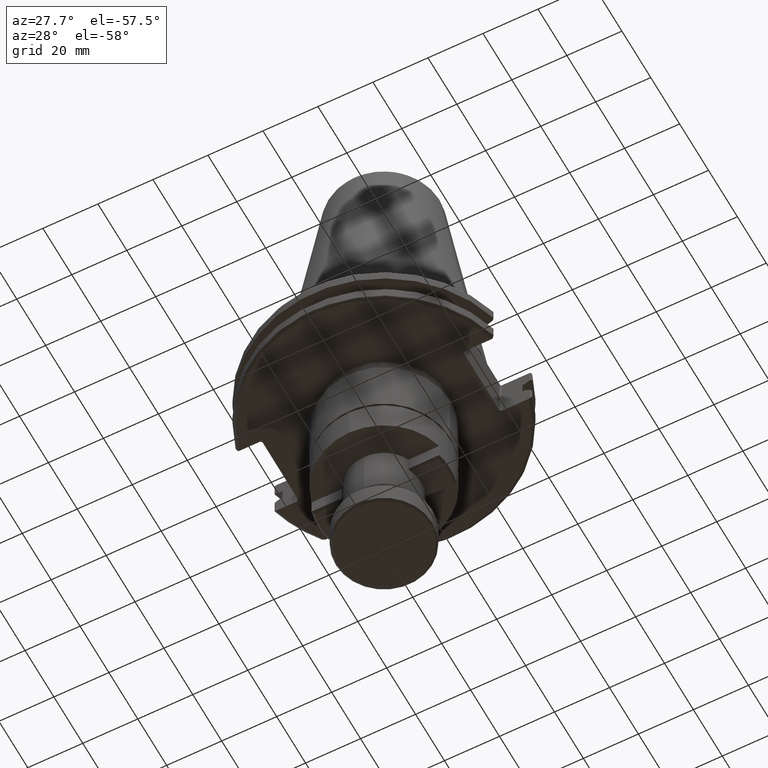
[diagram: clean part render]
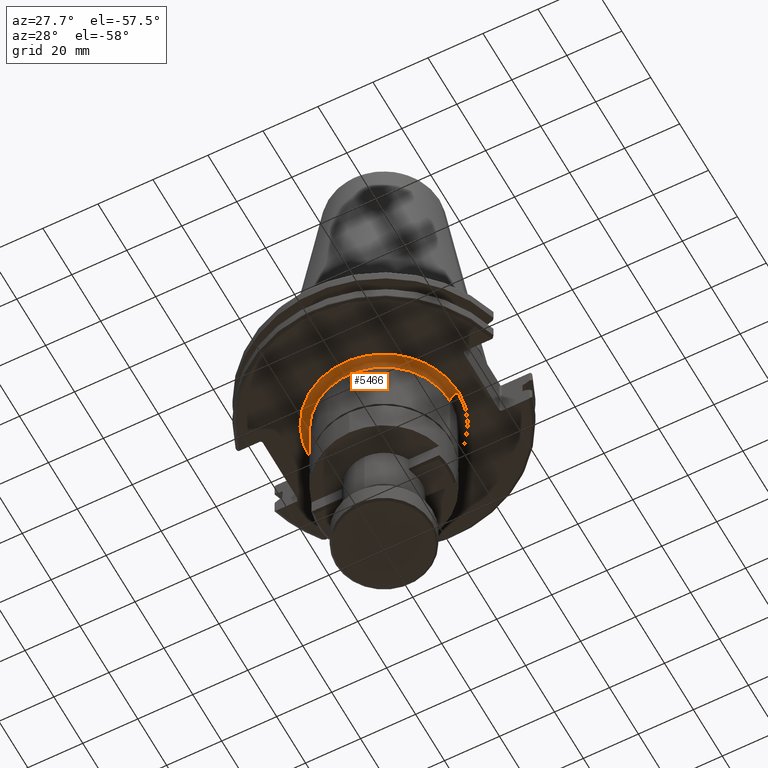
[diagram: same view with one face highlighted and labeled with its STEP entity id]
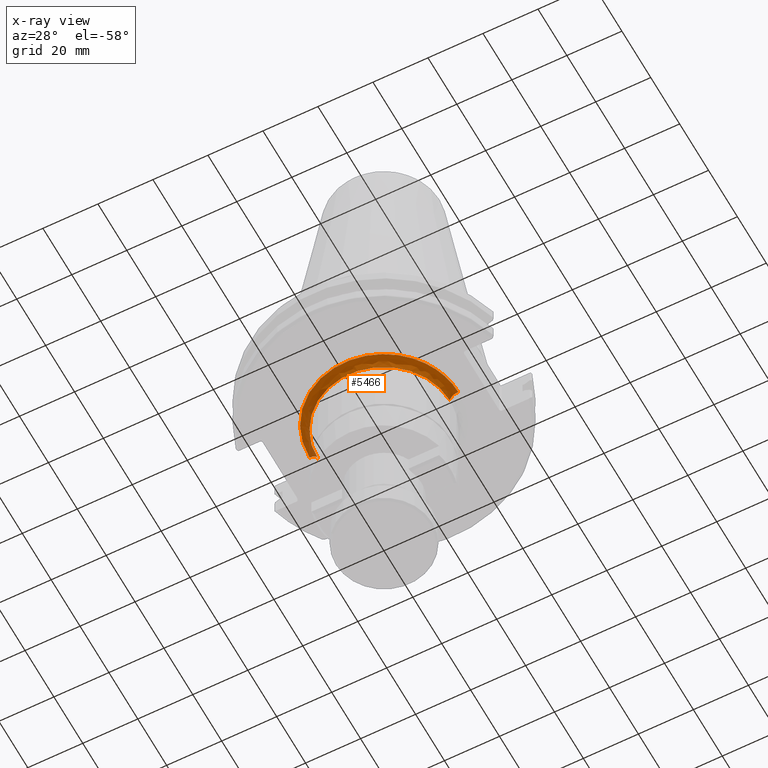
[diagram: x-ray of the same camera — body ghosted, the highlighted face saturated]
A machine part, auxiliary view. The second image highlights one B-rep face of the part: STEP entity #5466.
The next image is the same camera in x-ray: the body ghosted, the highlighted face saturated — about 1% of this face is hidden behind the body in this view.
In plain terms, the highlighted face is a freeform B-spline surface patch.
Its self-contained STEP definition (entity closure, byte-faithful):
#30 = VERTEX_POINT ( 'NONE', #5024 ) ;
#53 = CARTESIAN_POINT ( 'NONE',  ( 27.00000001431957800, 0.0000000000000000000, -19.09999999992663400 ) ) ;
#84 = CARTESIAN_POINT ( 'NONE',  ( -19.50167441603273500, -18.67936076512858500, -19.10000000000001200 ) ) ;
#103 = CARTESIAN_POINT ( 'NONE',  ( -19.84999780691019900, -18.30241700038675400, -19.10000000000000900 ) ) ;
#150 =( BOUNDED_CURVE ( )  B_SPLINE_CURVE ( 3, ( #4927, #3179, #5564, #761 ),
 .UNSPECIFIED., .F., .T. ) 
 B_SPLINE_CURVE_WITH_KNOTS ( ( 4, 4 ),
 ( 0.06314145671542523200, 0.9368585430000012600 ),
 .UNSPECIFIED. ) 
 CURVE ( )  GEOMETRIC_REPRESENTATION_ITEM ( )  RATIONAL_B_SPLINE_CURVE ( ( 0.9565783023485026100, 0.7697947703959741000, 0.7697947703351378800, 0.9565783021659939300 ) ) 
 REPRESENTATION_ITEM ( '' )  );
#231 =( BOUNDED_CURVE ( )  B_SPLINE_CURVE ( 3, ( #1538, #1385, #660, #719 ),
 .UNSPECIFIED., .F., .T. ) 
 B_SPLINE_CURVE_WITH_KNOTS ( ( 4, 4 ),
 ( 0.06314145699999974800, 0.9368585429999997100 ),
 .UNSPECIFIED. ) 
 CURVE ( )  GEOMETRIC_REPRESENTATION_ITEM ( )  RATIONAL_B_SPLINE_CURVE ( ( 0.9565783021659933800, 0.7697947703959744400, 0.7697947703959742100, 0.9565783021659929300 ) ) 
 REPRESENTATION_ITEM ( '' )  );
#322 = CARTESIAN_POINT ( 'NONE',  ( 25.72566664648176300, -8.200965153939764100, -19.10000000000000100 ) ) ;
#367 = CARTESIAN_POINT ( 'NONE',  ( 26.75981747647369200, -3.593361498511896000, -19.10000000000000500 ) ) ;
#387 = CARTESIAN_POINT ( 'NONE',  ( -18.99628863891091900, -19.19767316538471700, -19.09999999999999800 ) ) ;
#394 = CARTESIAN_POINT ( 'NONE',  ( 25.91702885238396800, -7.570186068183322600, -19.10000000000000900 ) ) ;
#395 = CARTESIAN_POINT ( 'NONE',  ( -18.38281046055189100, -19.77814483559315700, -19.10000000000000100 ) ) ;
#427 = CARTESIAN_POINT ( 'NONE',  ( -19.86864130540779200, -18.28217372692032700, -19.10000000000000900 ) ) ;
#538 = CARTESIAN_POINT ( 'NONE',  ( 25.90655496766824600, -7.605952960988609800, -19.10000000000000100 ) ) ;
#660 = CARTESIAN_POINT ( 'NONE',  ( -24.00000000091064900, 0.0000000000000000000, -20.34264068676927900 ) ) ;
#663 = CARTESIAN_POINT ( 'NONE',  ( -19.96609943575098000, -18.17582499351097900, -19.10000000000000100 ) ) ;
#688 = CARTESIAN_POINT ( 'NONE',  ( -19.90766737399889800, -18.23966939277528400, -19.10000000000000500 ) ) ;
#719 = CARTESIAN_POINT ( 'NONE',  ( -23.99999999996942900, -7.383723426551921600E-009, -22.09999999965454600 ) ) ;
#735 = CARTESIAN_POINT ( 'NONE',  ( -3.915018260296352400, -26.71611441341320200, -19.10000000000000900 ) ) ;
#761 = CARTESIAN_POINT ( 'NONE',  ( 27.00000001431958200, 0.0000000000000000000, -19.09999999992663400 ) ) ;
#842 = CARTESIAN_POINT ( 'NONE',  ( 26.74098892414473400, -3.731303878574411900, -19.10000000000000500 ) ) ;
#860 = CARTESIAN_POINT ( 'NONE',  ( 25.91328856593676700, -7.582980795628897000, -19.10000000000000500 ) ) ;
#978 = CARTESIAN_POINT ( 'NONE',  ( -3.640837500615655000, -26.75486954292323500, -19.10000000000000100 ) ) ;
#1020 = CARTESIAN_POINT ( 'NONE',  ( -2.245988518057251900, -26.92993816402518800, -19.10000000000000900 ) ) ;
#1021 = CARTESIAN_POINT ( 'NONE',  ( 24.60524586572257600, -11.14311798136822400, -19.10000000000000900 ) ) ;
#1130 = CARTESIAN_POINT ( 'NONE',  ( -1.124634048996882500, -26.99997708943663000, -19.10000000000000500 ) ) ;
#1165 = ORIENTED_EDGE ( 'NONE', *, *, #3167, .F. ) ;
#1179 = CARTESIAN_POINT ( 'NONE',  ( 0.5623170244984414500, -27.00001145325764900, -19.10000000000000900 ) ) ;
#1215 = CARTESIAN_POINT ( 'NONE',  ( 1.404288255885268500, -26.97375545277452600, -19.09999999999999800 ) ) ;
#1242 = CARTESIAN_POINT ( 'NONE',  ( 2.383955491455107500, -26.89714538302202800, -19.09999999999999400 ) ) ;
#1253 = CARTESIAN_POINT ( 'NONE',  ( 2.803248763617592200, -26.85446005258763700, -19.10000000000000100 ) ) ;
#1259 = CARTESIAN_POINT ( 'NONE',  ( 3.082652252945838000, -26.82381373376523500, -19.10000000000000100 ) ) ;
#1342 = B_SPLINE_CURVE_WITH_KNOTS ( 'NONE', 3,
 ( #2737, #2836, #2877, #3944, #4644, #4770, #4747, #4900, #4939, #4955, #4979, #5000, #5020, #5036, #5057, #5089, #5465, #5066, #5488, #5618, #5257, #5282, #5310, #5358, #2366, #2355, #4632, #5641, #5517, #5540, #5627, #5651, #5671, #4882, #2596, #2580, #2563, #2464, #2471, #2664, #2647, #5383, #5431, #2429, #4875, #4669, #4662, #4376, #4612, #3595, #663, #688, #427, #103, #84, #387, #395, #3420, #3356, #4194, #2774, #2818, #2757, #2703, #3961, #2687, #4466, #4808, #4830, #4590, #5102, #5081, #5409, #2724, #2960, #2875, #4624, #4570, #4448, #4529, #4152, #4110, #4092, #4337, #4309, #4390, #4356, #4209, #4182, #4427, #4494, #4548, #735, #978, #1020, #1130, #1179, #1215, #1242, #1253, #1259, #1427, #1444, #1514, #1551, #1564, #1619, #1637, #1644, #1794, #1861, #1884, #1904, #1922, #1935, #1969, #1986, #2007, #2027, #2044, #2049, #2060, #2073, #2078, #2090, #2180, #2295, #2334, #2200, #2217, #2281, #2630, #2414, #4036, #3164, #3099, #3110, #3141, #3183, #3224, #3245, #3268, #3314, #3321, #3340, #3476, #3531, #3549, #3566, #3582, #3612, #3630, #3643, #3690, #3707, #3730, #3751, #3772, #3777, #3790, #3894, #3912, #3926, #3995, #4052, #4605, #3981, #2384, #2439, #4831, #1021, #3455, #1372, #322, #3503, #2188, #1773, #538, #860, #394, #5582, #1607, #1993, #1625, #3717, #842, #5631, #4164, #4140, #367, #3312, #4620, #53 ),
 .UNSPECIFIED., .F., .F.,
 ( 4, 1, 1, 1, 1, 1, 1, 2, 2, 1, 1, 1, 1, 1, 1, 2, 2, 1, 1, 1, 1, 1, 2, 2, 1, 1, 1, 1, 2, 2, 1, 1, 1, 1, 2, 2, 1, 1, 1, 1, 2, 2, 1, 1, 1, 1, 2, 2, 1, 1, 1, 2, 2, 1, 1, 1, 2, 2, 1, 1, 1, 2, 2, 1, 1, 2, 2, 1, 2, 2, 2, 1, 1, 2, 2, 1, 1, 2, 2, 1, 1, 1, 2, 2, 1, 1, 1, 2, 2, 1, 1, 1, 1, 2, 2, 1, 1, 1, 1, 2, 2, 1, 1, 1, 1, 2, 2, 1, 1, 1, 1, 2, 2, 1, 1, 1, 1, 2, 2, 1, 1, 1, 1, 2, 2, 1, 1, 1, 1, 1, 1, 2, 2, 1, 1, 1, 1, 1, 1, 2, 2, 4 ),
 ( 0.0000000000000000000, 0.03125000000000305300, 0.04687500000000456600, 0.05468750000000532200, 0.05859375000000572500, 0.06054687500000591200, 0.06152343750000600900, 0.06201171875000603700, 0.06250000000000606500, 0.09375000000000860400, 0.1093750000000098400, 0.1171875000000104800, 0.1210937500000108000, 0.1230468750000109800, 0.1240234375000110900, 0.1245117187500111600, 0.1250000000000112100, 0.1562500000000142700, 0.1718750000000157400, 0.1796875000000164600, 0.1835937500000167900, 0.1855468750000169900, 0.1865234375000171000, 0.1875000000000171800, 0.2031250000000186000, 0.2109375000000192900, 0.2148437500000196800, 0.2167968750000199000, 0.2177734375000200100, 0.2187500000000201000, 0.2343750000000214000, 0.2421875000000220900, 0.2460937500000224300, 0.2480468750000226500, 0.2490234375000228200, 0.2500000000000229300, 0.2656250000000243100, 0.2734375000000250400, 0.2773437500000253700, 0.2792968750000255900, 0.2802734375000256500, 0.2812500000000257600, 0.2968750000000258700, 0.3046875000000259200, 0.3085937500000259200, 0.3105468750000259800, 0.3115234375000259800, 0.3125000000000260300, 0.3281250000000265300, 0.3359375000000267600, 0.3398437500000268700, 0.3417968750000269200, 0.3437500000000269200, 0.3593750000000272600, 0.3671875000000274800, 0.3710937500000275900, 0.3730468750000276400, 0.3750000000000276400, 0.3906250000000279200, 0.3984375000000280900, 0.4023437500000281400, 0.4042968750000282600, 0.4062500000000283100, 0.4218750000000288700, 0.4296875000000291400, 0.4335937500000292500, 0.4375000000000293700, 0.4531250000000297000, 0.4609375000000299200, 0.4687500000000301400, 0.5000000000000308600, 0.5156250000000313100, 0.5234375000000315300, 0.5273437500000315300, 0.5312500000000315300, 0.5468750000000319700, 0.5546875000000322000, 0.5585937500000324200, 0.5625000000000325300, 0.5781250000000329700, 0.5859375000000330800, 0.5898437500000330800, 0.5917968750000332000, 0.5937500000000332000, 0.6093750000000336400, 0.6171875000000337500, 0.6210937500000338600, 0.6230468750000338600, 0.6250000000000339700, 0.6406250000000344200, 0.6484375000000346400, 0.6523437500000347500, 0.6542968750000348600, 0.6552734375000348600, 0.6562500000000347500, 0.6718750000000347500, 0.6796875000000346400, 0.6835937500000347500, 0.6855468750000346400, 0.6865234375000346400, 0.6875000000000346400, 0.7031250000000330800, 0.7109375000000322000, 0.7148437500000316400, 0.7167968750000314200, 0.7177734375000313100, 0.7187500000000310900, 0.7343750000000298600, 0.7421875000000292000, 0.7460937500000288700, 0.7480468750000285300, 0.7490234375000284200, 0.7500000000000283100, 0.7656250000000260900, 0.7734375000000249800, 0.7773437500000243100, 0.7792968750000240900, 0.7802734375000238700, 0.7812500000000235400, 0.7968750000000205400, 0.8046875000000189800, 0.8085937500000182100, 0.8105468750000176500, 0.8115234375000174300, 0.8125000000000172100, 0.8437500000000118800, 0.8593750000000092100, 0.8671875000000079900, 0.8710937500000074400, 0.8730468750000069900, 0.8740234375000067700, 0.8745117187500067700, 0.8750000000000066600, 0.9062500000000044400, 0.9218750000000034400, 0.9296875000000028900, 0.9335937500000026600, 0.9355468750000024400, 0.9365234375000023300, 0.9370117187500023300, 0.9375000000000022200, 1.000000000000000000 ),
 .UNSPECIFIED. ) ;
#1372 = CARTESIAN_POINT ( 'NONE',  ( 25.51809306428453200, -8.836774935104758200, -19.10000000000000100 ) ) ;
#1385 = CARTESIAN_POINT ( 'NONE',  ( -25.24264068676928100, 0.0000000000000000000, -19.10000000091065100 ) ) ;
#1391 = VERTEX_POINT ( 'NONE', #3525 ) ;
#1427 = CARTESIAN_POINT ( 'NONE',  ( 3.223463379952974200, -26.80724880032117600, -19.09999999999999800 ) ) ;
#1444 = CARTESIAN_POINT ( 'NONE',  ( 3.915485000707942000, -26.72042113443342600, -19.10000000000000900 ) ) ;
#1514 = CARTESIAN_POINT ( 'NONE',  ( 4.741233740873622300, -26.59074297249817000, -19.09999999999999800 ) ) ;
#1538 = CARTESIAN_POINT ( 'NONE',  ( -27.00000001431958600, 0.0000000000000000000, -19.09999999992663400 ) ) ;
#1551 = CARTESIAN_POINT ( 'NONE',  ( 5.696422162771404500, -26.39485309855133700, -19.10000000000000100 ) ) ;
#1564 = CARTESIAN_POINT ( 'NONE',  ( 6.104034677521426900, -26.30134343435505800, -19.09999999999999800 ) ) ;
#1607 = CARTESIAN_POINT ( 'NONE',  ( 26.35790112285480900, -5.922169170356236000, -19.10000000000000100 ) ) ;
#1619 = CARTESIAN_POINT ( 'NONE',  ( 6.375386586959749900, -26.23687991131836800, -19.10000000000000900 ) ) ;
#1625 = CARTESIAN_POINT ( 'NONE',  ( 26.67667023603048900, -4.172121578323515000, -19.10000000000000500 ) ) ;
#1637 = CARTESIAN_POINT ( 'NONE',  ( 6.513019746259797000, -26.20303976023536300, -19.10000000000000500 ) ) ;
#1644 = CARTESIAN_POINT ( 'NONE',  ( 7.178690243988511600, -26.03399479867323400, -19.10000000000000900 ) ) ;
#1773 = CARTESIAN_POINT ( 'NONE',  ( 25.89643240470180500, -7.640402578381158000, -19.10000000000000500 ) ) ;
#1794 = CARTESIAN_POINT ( 'NONE',  ( 7.969964821269930300, -25.80716869256951200, -19.09999999999999400 ) ) ;
#1803 = EDGE_CURVE ( 'NONE', #3031, #1391, #150, .T. ) ;
#1861 = CARTESIAN_POINT ( 'NONE',  ( 8.879940959777124800, -25.50058696904744700, -19.10000000000000100 ) ) ;
#1884 = CARTESIAN_POINT ( 'NONE',  ( 9.331634645283763500, -25.33680829068615000, -19.10000000000000100 ) ) ;
#1904 = CARTESIAN_POINT ( 'NONE',  ( 9.524511713983690300, -25.26437003925983000, -19.10000000000000500 ) ) ;
#1907 = EDGE_CURVE ( 'NONE', #30, #4093, #231, .T. ) ;
#1922 = CARTESIAN_POINT ( 'NONE',  ( 9.652939551033785600, -25.21557845180417000, -19.10000000000000900 ) ) ;
#1935 = CARTESIAN_POINT ( 'NONE',  ( 9.718549880575897900, -25.19035976100701300, -19.10000000000000500 ) ) ;
#1969 = CARTESIAN_POINT ( 'NONE',  ( 10.28178963002465600, -24.97146152326607500, -19.10000000000000900 ) ) ;
#1975 = AXIS2_PLACEMENT_3D ( 'NONE', #3514, #3530, #3553 ) ;
#1986 = CARTESIAN_POINT ( 'NONE',  ( 11.02287658098833500, -24.65771582426994300, -19.09999999999999400 ) ) ;
#1993 = CARTESIAN_POINT ( 'NONE',  ( 26.58134619576635400, -4.757821568016872500, -19.10000000000000100 ) ) ;
#2007 = CARTESIAN_POINT ( 'NONE',  ( 11.87015410591868800, -24.25338675692680800, -19.09999999999999800 ) ) ;
#2027 = CARTESIAN_POINT ( 'NONE',  ( 12.28946188891871900, -24.04164911862664400, -19.09999999999999800 ) ) ;
#2044 = CARTESIAN_POINT ( 'NONE',  ( 12.46823715746189800, -23.94885303693473200, -19.10000000000000500 ) ) ;
#2049 = CARTESIAN_POINT ( 'NONE',  ( 12.58721443270663400, -23.88653312034829300, -19.10000000000000500 ) ) ;
#2060 = CARTESIAN_POINT ( 'NONE',  ( 12.64835573239741100, -23.85420885789477600, -19.10000000000000500 ) ) ;
#2073 = CARTESIAN_POINT ( 'NONE',  ( 13.16609531129834900, -23.57809383200862300, -19.10000000000000500 ) ) ;
#2078 = CARTESIAN_POINT ( 'NONE',  ( 13.84472792148390000, -23.19054216379490500, -19.09999999999999400 ) ) ;
#2090 = CARTESIAN_POINT ( 'NONE',  ( 14.61601401708957400, -22.70445152523930000, -19.09999999999999800 ) ) ;
#2180 = CARTESIAN_POINT ( 'NONE',  ( 14.99654407748970000, -22.45291944955158300, -19.09999999999999800 ) ) ;
#2188 = CARTESIAN_POINT ( 'NONE',  ( 25.87265793216764800, -7.720724604434636300, -19.10000000000000100 ) ) ;
#2200 = CARTESIAN_POINT ( 'NONE',  ( 15.32000403474432600, -22.23282456729258200, -19.09999999999999800 ) ) ;
#2217 = CARTESIAN_POINT ( 'NONE',  ( 15.34780479456201300, -22.21364098890562400, -19.10000000000000100 ) ) ;
#2281 = CARTESIAN_POINT ( 'NONE',  ( 15.78743644057085200, -21.90914629388371200, -19.10000000000000500 ) ) ;
#2295 = CARTESIAN_POINT ( 'NONE',  ( 15.18553086083908700, -22.32503172260526400, -19.09999999999999400 ) ) ;
#2334 = CARTESIAN_POINT ( 'NONE',  ( 15.26625128652082500, -22.26976804910630700, -19.10000000000000900 ) ) ;
#2355 = CARTESIAN_POINT ( 'NONE',  ( -24.41487573560658200, -11.52953640104372800, -19.10000000000000100 ) ) ;
#2366 = CARTESIAN_POINT ( 'NONE',  ( -24.55677178621875000, -11.22634060830551800, -19.09999999999999800 ) ) ;
#2384 = CARTESIAN_POINT ( 'NONE',  ( 24.22388500565596900, -11.92493184772801300, -19.10000000000000900 ) ) ;
#2414 = CARTESIAN_POINT ( 'NONE',  ( 17.08183029626526000, -20.91226196979910400, -19.10000000000000100 ) ) ;
#2429 = CARTESIAN_POINT ( 'NONE',  ( -21.66570427815505400, -16.11204316935008400, -19.10000000000000100 ) ) ;
#2439 = CARTESIAN_POINT ( 'NONE',  ( 24.24682315443070000, -11.87822369832018400, -19.10000000000000900 ) ) ;
#2464 = CARTESIAN_POINT ( 'NONE',  ( -23.08842657600481400, -13.99733122057486400, -19.10000000000000500 ) ) ;
#2471 = CARTESIAN_POINT ( 'NONE',  ( -22.84630235980485600, -14.39581618589313200, -19.09999999999999800 ) ) ;
#2491 = CARTESIAN_POINT ( 'NONE',  ( -24.01498750400000400, 0.0000000000000000000, -22.39950024999999900 ) ) ;
#2549 = CARTESIAN_POINT ( 'NONE',  ( 23.99999999996942900, -1.077523541144796300E-009, -22.10000000000000900 ) ) ;
#2563 = CARTESIAN_POINT ( 'NONE',  ( -23.10117615396595900, -13.97627592409089400, -19.10000000000000500 ) ) ;
#2580 = CARTESIAN_POINT ( 'NONE',  ( -23.12806898204388900, -13.93172723772369700, -19.10000000000000100 ) ) ;
#2596 = CARTESIAN_POINT ( 'NONE',  ( -23.16830887332462300, -13.86485111036721600, -19.09999999999999800 ) ) ;
#2630 = CARTESIAN_POINT ( 'NONE',  ( 16.39523455840580000, -21.46255088912238300, -19.09999999999999800 ) ) ;
#2647 = CARTESIAN_POINT ( 'NONE',  ( -22.05335345003347700, -15.57993159281507700, -19.10000000000000100 ) ) ;
#2664 = CARTESIAN_POINT ( 'NONE',  ( -22.49111815134663300, -14.94950325164092100, -19.09999999999999800 ) ) ;
#2687 = CARTESIAN_POINT ( 'NONE',  ( -15.73404724991259600, -21.94236976191145400, -19.10000000000000100 ) ) ;
#2703 = CARTESIAN_POINT ( 'NONE',  ( -16.79233503453267000, -21.15330553464737300, -19.10000000000000100 ) ) ;
#2706 = EDGE_CURVE ( 'NONE', #4093, #3031, #4721, .T. ) ;
#2710 = CARTESIAN_POINT ( 'NONE',  ( -24.01498750400000800, -48.02997500800001500, -22.39950024999999900 ) ) ;
#2724 = CARTESIAN_POINT ( 'NONE',  ( -12.93551390278294200, -23.69971950361174600, -19.10000000000000500 ) ) ;
#2737 = CARTESIAN_POINT ( 'NONE',  ( -27.00000001431958600, 0.0000000000000000000, -19.09999999992663400 ) ) ;
#2757 = CARTESIAN_POINT ( 'NONE',  ( -17.37421338520477900, -20.67342678626984700, -19.10000000000000500 ) ) ;
#2774 = CARTESIAN_POINT ( 'NONE',  ( -17.79891340684976700, -20.30269787732503400, -19.09999999999999800 ) ) ;
#2818 = CARTESIAN_POINT ( 'NONE',  ( -17.77712536106629000, -20.32178068779164800, -19.10000000000000100 ) ) ;
#2836 = CARTESIAN_POINT ( 'NONE',  ( -26.99999999858500700, -0.5999146560185331100, -19.10000000000000100 ) ) ;
#2841 = CARTESIAN_POINT ( 'NONE',  ( 24.01498750400000800, -48.02997500800001500, -22.39950024999999900 ) ) ;
#2875 = CARTESIAN_POINT ( 'NONE',  ( -12.76512497406285500, -23.79193188673262000, -19.10000000000000100 ) ) ;
#2877 = CARTESIAN_POINT ( 'NONE',  ( -26.97013274194941000, -1.497859497567566100, -19.10000000000000500 ) ) ;
#2916 = CARTESIAN_POINT ( 'NONE',  ( 24.01498750400000400, 0.0000000000000000000, -22.39950024999999900 ) ) ;
#2960 = CARTESIAN_POINT ( 'NONE',  ( -12.82088413489934800, -23.76192547614115800, -19.10000000000000500 ) ) ;
#2990 = CARTESIAN_POINT ( 'NONE',  ( -23.81033873200000200, 0.0000000000000000000, -20.35983870400000500 ) ) ;
#3012 = CARTESIAN_POINT ( 'NONE',  ( -23.81033873199999800, -47.62067746399998900, -20.35983870400000500 ) ) ;
#3031 = VERTEX_POINT ( 'NONE', #2549 ) ;
#3099 = CARTESIAN_POINT ( 'NONE',  ( 17.65838670600427900, -20.42504087508851600, -19.10000000000000500 ) ) ;
#3110 = CARTESIAN_POINT ( 'NONE',  ( 17.70595590913058000, -20.38381862836232400, -19.10000000000000500 ) ) ;
#3141 = CARTESIAN_POINT ( 'NONE',  ( 17.73067791412891100, -20.36231667423901100, -19.10000000000000500 ) ) ;
#3164 = CARTESIAN_POINT ( 'NONE',  ( 17.58693244566178000, -20.48674361594963900, -19.10000000000000100 ) ) ;
#3167 = EDGE_CURVE ( 'NONE', #30, #1391, #1342, .T. ) ;
#3179 = CARTESIAN_POINT ( 'NONE',  ( 24.00000000010117100, 0.0000000000000000000, -20.34264068757874400 ) ) ;
#3183 = CARTESIAN_POINT ( 'NONE',  ( 18.11737253620285100, -20.02485100311215800, -19.10000000000000900 ) ) ;
#3190 = CARTESIAN_POINT ( 'NONE',  ( 23.81033873199999800, -47.62067746399998900, -20.35983870400000500 ) ) ;
#3224 = CARTESIAN_POINT ( 'NONE',  ( 18.64984388828689200, -19.53440549246658600, -19.10000000000000500 ) ) ;
#3230 = CARTESIAN_POINT ( 'NONE',  ( 23.81033873200000200, 0.0000000000000000000, -20.35983870400000500 ) ) ;
#3245 = CARTESIAN_POINT ( 'NONE',  ( 19.24752214791793400, -18.93767813665197500, -19.10000000000000100 ) ) ;
#3268 = CARTESIAN_POINT ( 'NONE',  ( 19.54047669828337400, -18.63317922706264400, -19.10000000000000100 ) ) ;
#3312 = CARTESIAN_POINT ( 'NONE',  ( 26.92035398089006300, -2.394860910733607600, -19.10000000000000900 ) ) ;
#3314 = CARTESIAN_POINT ( 'NONE',  ( 19.68548282860357900, -18.47939596434746100, -19.09999999999999800 ) ) ;
#3321 = CARTESIAN_POINT ( 'NONE',  ( 19.74731306769883700, -18.41316017862942900, -19.10000000000000100 ) ) ;
#3339 = CARTESIAN_POINT ( 'NONE',  ( -25.25983870400000300, 0.0000000000000000000, -18.91033873200000300 ) ) ;
#3340 = CARTESIAN_POINT ( 'NONE',  ( 19.78846317257843200, -18.36892994967833200, -19.10000000000001200 ) ) ;
#3356 = CARTESIAN_POINT ( 'NONE',  ( -17.91226244748983000, -20.20289965633495700, -19.09999999999999400 ) ) ;
#3400 = CARTESIAN_POINT ( 'NONE',  ( -25.25983870400000300, -50.51967740899999600, -18.91033873200000300 ) ) ;
#3418 = CARTESIAN_POINT ( 'NONE',  ( 25.25983870400000300, -50.51967740899999600, -18.91033873200000300 ) ) ;
#3420 = CARTESIAN_POINT ( 'NONE',  ( -18.07010601177651000, -20.06232413817479500, -19.10000000000000500 ) ) ;
#3442 = CARTESIAN_POINT ( 'NONE',  ( 25.25983870400000300, 0.0000000000000000000, -18.91033873200000300 ) ) ;
#3455 = CARTESIAN_POINT ( 'NONE',  ( 25.06322520977783700, -10.09292837797690400, -19.10000000000000100 ) ) ;
#3463 = CARTESIAN_POINT ( 'NONE',  ( -27.29950024999999800, 0.0000000000000000000, -19.11498750400000500 ) ) ;
#3476 = CARTESIAN_POINT ( 'NONE',  ( 19.80993748405983000, -18.34576733867190900, -19.10000000000001200 ) ) ;
#3503 = CARTESIAN_POINT ( 'NONE',  ( 25.82448835131635400, -7.881126998425058300, -19.09999999999999800 ) ) ;
#3514 = CARTESIAN_POINT ( 'NONE',  ( 0.0000000000000000000, 0.0000000000000000000, -22.10000000000000900 ) ) ;
#3525 = CARTESIAN_POINT ( 'NONE',  ( 27.00000001431957800, 0.0000000000000000000, -19.09999999992663400 ) ) ;
#3530 = DIRECTION ( 'NONE',  ( 0.0000000000000000000, 0.0000000000000000000, 1.000000000000000000 ) ) ;
#3531 = CARTESIAN_POINT ( 'NONE',  ( 20.14263958163858300, -17.98575535256615900, -19.10000000000000500 ) ) ;
#3549 = CARTESIAN_POINT ( 'NONE',  ( 20.59879959650417200, -17.46605547424827900, -19.10000000000000100 ) ) ;
#3553 = DIRECTION ( 'NONE',  ( 1.000000000000000000, 0.0000000000000000000, 2.891205793294678300E-016 ) ) ;
#3566 = CARTESIAN_POINT ( 'NONE',  ( 21.10729641839307600, -16.83970553992552200, -19.10000000000000100 ) ) ;
#3582 = CARTESIAN_POINT ( 'NONE',  ( 21.35562236380729200, -16.52152222035950800, -19.10000000000000100 ) ) ;
#3595 = CARTESIAN_POINT ( 'NONE',  ( -20.10169162523055100, -18.02623944223379500, -19.10000000000000100 ) ) ;
#3612 = CARTESIAN_POINT ( 'NONE',  ( 21.47830472013183100, -16.36117847247532700, -19.09999999999999800 ) ) ;
#3630 = CARTESIAN_POINT ( 'NONE',  ( 21.53056559790323400, -16.29219141878900600, -19.10000000000000100 ) ) ;
#3643 = CARTESIAN_POINT ( 'NONE',  ( 21.56533567754213000, -16.24614042642187800, -19.10000000000000500 ) ) ;
#3648 = CARTESIAN_POINT ( 'NONE',  ( -27.29950024999999400, -54.59900050000000200, -19.11498750400000500 ) ) ;
#3670 = CARTESIAN_POINT ( 'NONE',  ( 27.29950024999999400, -54.59900050000000200, -19.11498750400000500 ) ) ;
#3690 = CARTESIAN_POINT ( 'NONE',  ( 21.58354273535638200, -16.22194213679059200, -19.10000000000000500 ) ) ;
#3707 = CARTESIAN_POINT ( 'NONE',  ( 21.86331621505395600, -15.84892579758708400, -19.10000000000000100 ) ) ;
#3717 = CARTESIAN_POINT ( 'NONE',  ( 26.72023263211462300, -3.878390036345929400, -19.09999999999999400 ) ) ;
#3730 = CARTESIAN_POINT ( 'NONE',  ( 22.24507637421641300, -15.31321658556735300, -19.10000000000000100 ) ) ;
#3735 = CARTESIAN_POINT ( 'NONE',  ( 27.29950024999999800, 0.0000000000000000000, -19.11498750400000500 ) ) ;
#3751 = CARTESIAN_POINT ( 'NONE',  ( 22.66733843761876700, -14.67230116305182200, -19.10000000000000100 ) ) ;
#3770 =( BOUNDED_SURFACE ( )  B_SPLINE_SURFACE ( 3, 3, ( 
 ( #3735, #3670, #3648, #3463 ),
 ( #3442, #3418, #3400, #3339 ),
 ( #3230, #3190, #3012, #2990 ),
 ( #2916, #2841, #2710, #2491 ) ),
 .UNSPECIFIED., .F., .F., .F. ) 
 B_SPLINE_SURFACE_WITH_KNOTS ( ( 4, 4 ),
 ( 4, 4 ),
 ( 0.0000000000000000000, 1.000000000000000000 ),
 ( 0.0000000000000000000, 1.000000000000000000 ),
 .UNSPECIFIED. ) 
 GEOMETRIC_REPRESENTATION_ITEM ( )  RATIONAL_B_SPLINE_SURFACE ( (
 ( 1.000000000000000000, 0.3333333333333330400, 0.3333333333333330400, 1.000000000000000000),
 ( 0.7553208711179720800, 0.2517736237059909900, 0.2517736237059909900, 0.7553208711179720800),
 ( 0.7553208711179720800, 0.2517736237059909900, 0.2517736237059909900, 0.7553208711179720800),
 ( 1.000000000000000000, 0.3333333333333330400, 0.3333333333333330400, 1.000000000000000000) ) ) 
 REPRESENTATION_ITEM ( '' )  SURFACE ( )  );
#3772 = CARTESIAN_POINT ( 'NONE',  ( 22.87268827208147900, -14.34786311633759900, -19.10000000000000100 ) ) ;
#3777 = CARTESIAN_POINT ( 'NONE',  ( 22.97391789000321800, -14.18464900911638300, -19.09999999999999800 ) ) ;
#3790 = CARTESIAN_POINT ( 'NONE',  ( 23.01699230497476700, -14.11448687376496900, -19.10000000000000100 ) ) ;
#3894 = CARTESIAN_POINT ( 'NONE',  ( 23.04563975784581200, -14.06766473191811800, -19.10000000000000500 ) ) ;
#3912 = CARTESIAN_POINT ( 'NONE',  ( 23.06068164933190400, -14.04299149686523600, -19.10000000000000500 ) ) ;
#3926 = CARTESIAN_POINT ( 'NONE',  ( 23.29022118657159300, -13.66525176524719300, -19.10000000000000500 ) ) ;
#3944 = CARTESIAN_POINT ( 'NONE',  ( -26.88301991009555900, -2.542089313370256700, -19.10000000000000500 ) ) ;
#3961 = CARTESIAN_POINT ( 'NONE',  ( -16.09061943249489300, -21.68417917019453600, -19.10000000000000100 ) ) ;
#3981 = CARTESIAN_POINT ( 'NONE',  ( 24.18937939936488500, -11.99493919649339400, -19.09999999999999800 ) ) ;
#3995 = CARTESIAN_POINT ( 'NONE',  ( 23.60168396333943300, -13.12494809980750600, -19.10000000000000100 ) ) ;
#4036 = CARTESIAN_POINT ( 'NONE',  ( 17.41950264862465000, -20.62980227336204200, -19.09999999999999800 ) ) ;
#4052 = CARTESIAN_POINT ( 'NONE',  ( 23.94301938200641500, -12.48230174588035600, -19.10000000000000100 ) ) ;
#4092 = CARTESIAN_POINT ( 'NONE',  ( -9.845146470972787600, -25.14115619544463000, -19.10000000000000500 ) ) ;
#4093 = VERTEX_POINT ( 'NONE', #4266 ) ;
#4110 = CARTESIAN_POINT ( 'NONE',  ( -9.906270416431803800, -25.11713030107966200, -19.10000000000000900 ) ) ;
#4140 = CARTESIAN_POINT ( 'NONE',  ( 26.75823707543800400, -3.605113276534147400, -19.10000000000000900 ) ) ;
#4152 = CARTESIAN_POINT ( 'NONE',  ( -10.03109194371891100, -25.06754250498837800, -19.10000000000000100 ) ) ;
#4164 = CARTESIAN_POINT ( 'NONE',  ( 26.75539390348273700, -3.626151821308976500, -19.10000000000000100 ) ) ;
#4182 = CARTESIAN_POINT ( 'NONE',  ( -6.781350663831070800, -26.13489218155834200, -19.10000000000000500 ) ) ;
#4194 = CARTESIAN_POINT ( 'NONE',  ( -17.84429563281719700, -20.26282184987559600, -19.10000000000000100 ) ) ;
#4209 = CARTESIAN_POINT ( 'NONE',  ( -6.912268220669612400, -26.10056266454983000, -19.10000000000001200 ) ) ;
#4266 = CARTESIAN_POINT ( 'NONE',  ( -23.99999999996942900, -7.383723426551921600E-009, -22.09999999965454600 ) ) ;
#4309 = CARTESIAN_POINT ( 'NONE',  ( -8.493058252123185900, -25.63977841181195700, -19.10000000000000100 ) ) ;
#4337 = CARTESIAN_POINT ( 'NONE',  ( -9.269016906849545400, -25.36509004776515400, -19.10000000000000500 ) ) ;
#4356 = CARTESIAN_POINT ( 'NONE',  ( -7.177409357713421500, -26.02890829796248400, -19.10000000000000500 ) ) ;
#4376 = CARTESIAN_POINT ( 'NONE',  ( -20.89426469973220800, -17.11149811741052700, -19.10000000000000100 ) ) ;
#4390 = CARTESIAN_POINT ( 'NONE',  ( -7.574147825458882500, -25.91844048486722200, -19.10000000000000100 ) ) ;
#4418 = EDGE_LOOP ( 'NONE', ( #4967, #1165, #5327, #4748 ) ) ;
#4427 = CARTESIAN_POINT ( 'NONE',  ( -6.105366573703392400, -26.30658511338126700, -19.10000000000000500 ) ) ;
#4448 = CARTESIAN_POINT ( 'NONE',  ( -10.65192583356993000, -24.81257311120963400, -19.09999999999999800 ) ) ;
#4466 = CARTESIAN_POINT ( 'NONE',  ( -15.58000608989945800, -22.05147010992086400, -19.10000000000000500 ) ) ;
#4494 = CARTESIAN_POINT ( 'NONE',  ( -5.289240351914097400, -26.48718243487758900, -19.09999999999999800 ) ) ;
#4529 = CARTESIAN_POINT ( 'NONE',  ( -10.21800742046398500, -24.99248044827188800, -19.10000000000000100 ) ) ;
#4548 = CARTESIAN_POINT ( 'NONE',  ( -4.465696159670664600, -26.62962846133720200, -19.10000000000000500 ) ) ;
#4570 = CARTESIAN_POINT ( 'NONE',  ( -11.51089186258503400, -24.43370828485683800, -19.10000000000000100 ) ) ;
#4590 = CARTESIAN_POINT ( 'NONE',  ( -14.94490758732276000, -22.49271647409313200, -19.10000000000000900 ) ) ;
#4605 = CARTESIAN_POINT ( 'NONE',  ( 24.10817763611604600, -12.15790554952158000, -19.10000000000000100 ) ) ;
#4612 = CARTESIAN_POINT ( 'NONE',  ( -20.36987885242174200, -17.72460719437083300, -19.10000000000000100 ) ) ;
#4620 = CARTESIAN_POINT ( 'NONE',  ( 26.99999999858500700, -1.200170645306655800, -19.10000000000000900 ) ) ;
#4624 = CARTESIAN_POINT ( 'NONE',  ( -12.23194137797488400, -24.07630960130585900, -19.10000000000000900 ) ) ;
#4632 = CARTESIAN_POINT ( 'NONE',  ( -24.34268392345620700, -11.68065747733186800, -19.09999999999999800 ) ) ;
#4644 = CARTESIAN_POINT ( 'NONE',  ( -26.82639656939055700, -3.063361096437145400, -19.10000000000000900 ) ) ;
#4662 = CARTESIAN_POINT ( 'NONE',  ( -21.32318638530367100, -16.56909962647129900, -19.10000000000000100 ) ) ;
#4669 = CARTESIAN_POINT ( 'NONE',  ( -21.61730084971577200, -16.17693127248532600, -19.10000000000000900 ) ) ;
#4721 = CIRCLE ( 'NONE', #1975, 24.00000000000000000 ) ;
#4747 = CARTESIAN_POINT ( 'NONE',  ( -26.77821228427138700, -3.453946066622230600, -19.10000000000000900 ) ) ;
#4748 = ORIENTED_EDGE ( 'NONE', *, *, #2706, .T. ) ;
#4770 = CARTESIAN_POINT ( 'NONE',  ( -26.79481816784357000, -3.323786206761978800, -19.10000000000000100 ) ) ;
#4808 = CARTESIAN_POINT ( 'NONE',  ( -15.47703986981624500, -22.12385861687679900, -19.10000000000000500 ) ) ;
#4830 = CARTESIAN_POINT ( 'NONE',  ( -15.42726021615868400, -22.15860616902780600, -19.10000000000000100 ) ) ;
#4831 = CARTESIAN_POINT ( 'NONE',  ( 24.25917595302497900, -11.85297138269719100, -19.10000000000000500 ) ) ;
#4875 = CARTESIAN_POINT ( 'NONE',  ( -21.63290433298648800, -16.15605627155192900, -19.10000000000000900 ) ) ;
#4882 = CARTESIAN_POINT ( 'NONE',  ( -23.26150649712655400, -13.70843512856225700, -19.09999999999999800 ) ) ;
#4900 = CARTESIAN_POINT ( 'NONE',  ( -26.76970517178570900, -3.519012822726821400, -19.09999999999999800 ) ) ;
#4927 = CARTESIAN_POINT ( 'NONE',  ( 23.99999999996942900, -1.077523541144796300E-009, -22.10000000000000900 ) ) ;
#4939 = CARTESIAN_POINT ( 'NONE',  ( -26.76601551557043400, -3.546895752380460300, -19.10000000000000100 ) ) ;
#4955 = CARTESIAN_POINT ( 'NONE',  ( -26.76354602234600200, -3.565483744824526000, -19.09999999999999800 ) ) ;
#4967 = ORIENTED_EDGE ( 'NONE', *, *, #1803, .T. ) ;
#4979 = CARTESIAN_POINT ( 'NONE',  ( -26.76247022662041500, -3.573554121552657400, -19.09999999999999800 ) ) ;
#5000 = CARTESIAN_POINT ( 'NONE',  ( -26.67093195380474300, -4.257137978898565900, -19.10000000000000100 ) ) ;
#5020 = CARTESIAN_POINT ( 'NONE',  ( -26.49820171667584000, -5.258929516279343000, -19.10000000000000100 ) ) ;
#5024 = CARTESIAN_POINT ( 'NONE',  ( -27.00000001431958600, 0.0000000000000000000, -19.09999999992663400 ) ) ;
#5036 = CARTESIAN_POINT ( 'NONE',  ( -26.23099641991705500, -6.414020145935625200, -19.10000000000000900 ) ) ;
#5057 = CARTESIAN_POINT ( 'NONE',  ( -26.08097209984391200, -6.988148919775120800, -19.10000000000000500 ) ) ;
#5066 = CARTESIAN_POINT ( 'NONE',  ( -25.94072021807240300, -7.488643176031502000, -19.10000000000000100 ) ) ;
#5081 = CARTESIAN_POINT ( 'NONE',  ( -13.50481858988294300, -23.38246858063443800, -19.09999999999999800 ) ) ;
#5089 = CARTESIAN_POINT ( 'NONE',  ( -26.00185452188393900, -7.274359171447713400, -19.10000000000000100 ) ) ;
#5102 = CARTESIAN_POINT ( 'NONE',  ( -14.28986627718055200, -22.91893166175961100, -19.10000000000000100 ) ) ;
#5257 = CARTESIAN_POINT ( 'NONE',  ( -25.92335010433094700, -7.548513112626849000, -19.10000000000000100 ) ) ;
#5282 = CARTESIAN_POINT ( 'NONE',  ( -25.70559323452361900, -8.295160767323105600, -19.10000000000000500 ) ) ;
#5310 = CARTESIAN_POINT ( 'NONE',  ( -25.33849602661445000, -9.380463927341780900, -19.09999999999999800 ) ) ;
#5327 = ORIENTED_EDGE ( 'NONE', *, *, #1907, .T. ) ;
#5358 = CARTESIAN_POINT ( 'NONE',  ( -24.83061359268917600, -10.61613446218131400, -19.09999999999999800 ) ) ;
#5383 = CARTESIAN_POINT ( 'NONE',  ( -21.82862531818226900, -15.89126078785259600, -19.10000000000000100 ) ) ;
#5384 = FACE_OUTER_BOUND ( 'NONE', #4418, .T. ) ;
#5409 = CARTESIAN_POINT ( 'NONE',  ( -13.10708653986786100, -23.60580850672115400, -19.09999999999999800 ) ) ;
#5431 = CARTESIAN_POINT ( 'NONE',  ( -21.71479980695804800, -16.04595414148394600, -19.10000000000000500 ) ) ;
#5465 = CARTESIAN_POINT ( 'NONE',  ( -25.96126937842302200, -7.417250763472197600, -19.09999999999999800 ) ) ;
#5466 = ADVANCED_FACE ( 'NONE', ( #5384 ), #3770, .F. ) ;
#5488 = CARTESIAN_POINT ( 'NONE',  ( -25.93185845178921100, -7.519228484959859000, -19.10000000000000900 ) ) ;
#5517 = CARTESIAN_POINT ( 'NONE',  ( -24.29061490581667100, -11.78840810464775200, -19.10000000000000500 ) ) ;
#5540 = CARTESIAN_POINT ( 'NONE',  ( -24.28105608350135500, -11.80808897573152000, -19.10000000000000500 ) ) ;
#5564 = CARTESIAN_POINT ( 'NONE',  ( 25.24264068605802400, 0.0000000000000000000, -19.10000000091064700 ) ) ;
#5582 = CARTESIAN_POINT ( 'NONE',  ( 26.11015335913067800, -6.908091611708855800, -19.10000000000000500 ) ) ;
#5618 = CARTESIAN_POINT ( 'NONE',  ( -25.92593838909470700, -7.539616148842907400, -19.10000000000000900 ) ) ;
#5627 = CARTESIAN_POINT ( 'NONE',  ( -24.08737230527745500, -12.20540783891789100, -19.10000000000000100 ) ) ;
#5631 = CARTESIAN_POINT ( 'NONE',  ( 26.75111084365678200, -3.657705702992951800, -19.10000000000000100 ) ) ;
#5641 = CARTESIAN_POINT ( 'NONE',  ( -24.31147804963947600, -11.74532147715228300, -19.10000000000000500 ) ) ;
#5651 = CARTESIAN_POINT ( 'NONE',  ( -23.80121947605015400, -12.75953206781760200, -19.09999999999999400 ) ) ;
#5671 = CARTESIAN_POINT ( 'NONE',  ( -23.44511992131784300, -13.39411642639306700, -19.09999999999999800 ) ) ;